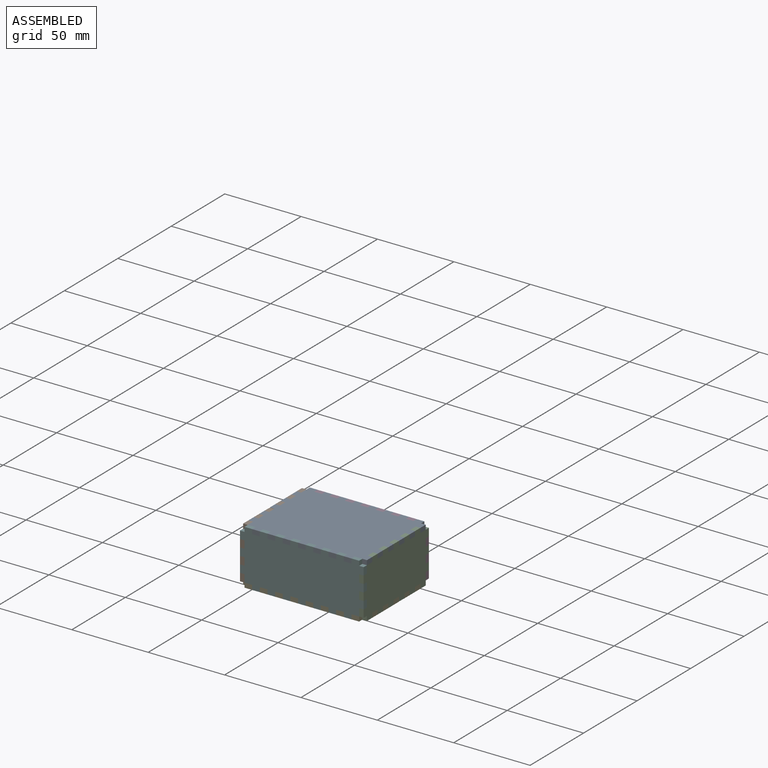
[diagram: assembled view]
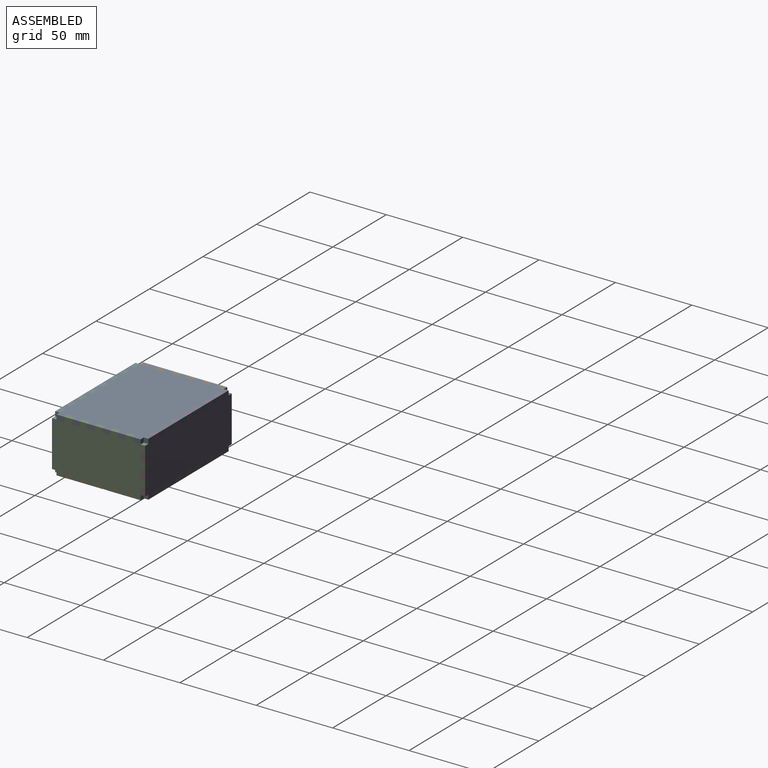
[diagram: assembled view, second angle]
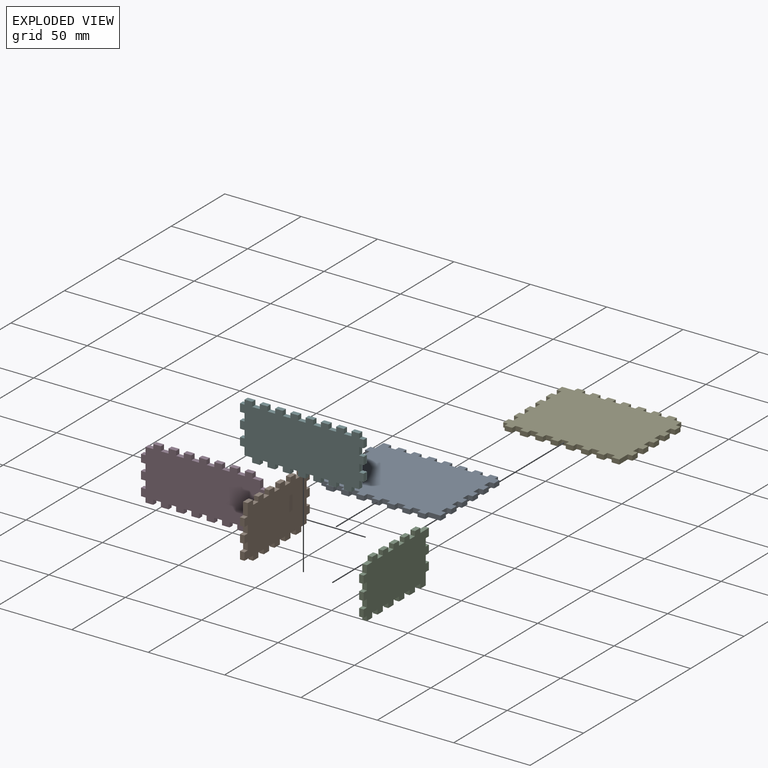
[diagram: exploded view]
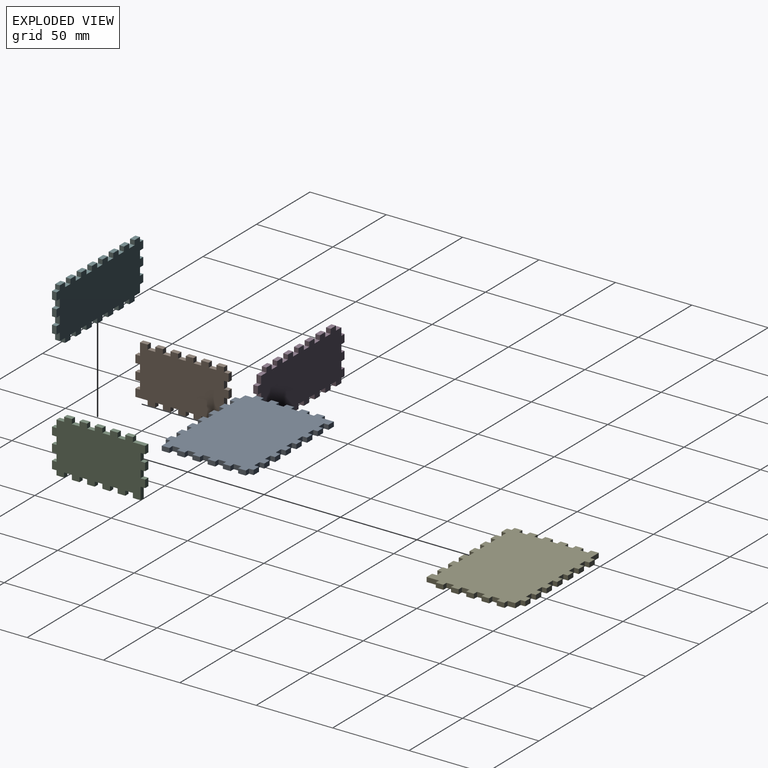
[diagram: exploded view, second angle]
ASSEMBLY  parts=6 mates=5
PART A: 104 faces, bbox 81x61x3 mm
  f0: plane 8x3mm, normal (-1,0,0), area 24mm2, adj f1,f101,f102,f103
  f1: plane 3x3mm, normal (0,1,0), area 9mm2, adj f0,f2,f102,f103
  f2: plane 5x3mm, normal (-1,0,0), area 15mm2, adj f1,f3,f102,f103
  f3: plane 3x3mm, normal (0,-1,0), area 9mm2, adj f2,f4,f102,f103
  f4: plane 5x3mm, normal (-1,0,0), area 15mm2, adj f3,f5,f102,f103
  f5: plane 3x3mm, normal (0,1,0), area 9mm2, adj f4,f6,f102,f103
  f6: plane 5x3mm, normal (-1,0,0), area 15mm2, adj f5,f7,f102,f103
  f7: plane 3x3mm, normal (0,-1,0), area 9mm2, adj f6,f8,f102,f103
  f8: plane 5x3mm, normal (-1,0,0), area 15mm2, adj f7,f9,f102,f103
  f9: plane 3x3mm, normal (0,1,0), area 9mm2, adj f8,f10,f102,f103
  f10: plane 5x3mm, normal (-1,0,0), area 15mm2, adj f9,f11,f102,f103
  f11: plane 3x3mm, normal (0,-1,0), area 9mm2, adj f10,f12,f102,f103
  f12: plane 5x3mm, normal (-1,0,0), area 15mm2, adj f11,f13,f102,f103
  f13: plane 3x3mm, normal (0,1,0), area 9mm2, adj f12,f14,f102,f103
  f14: plane 5x3mm, normal (-1,0,0), area 15mm2, adj f13,f15,f102,f103
  f15: plane 3x3mm, normal (0,-1,0), area 9mm2, adj f14,f16,f102,f103
  f16: plane 5x3mm, normal (-1,0,0), area 15mm2, adj f15,f17,f102,f103
  f17: plane 3x3mm, normal (0,1,0), area 9mm2, adj f16,f18,f102,f103
  f18: plane 5x3mm, normal (-1,0,0), area 15mm2, adj f17,f19,f102,f103
  f19: plane 3x3mm, normal (0,-1,0), area 9mm2, adj f18,f20,f102,f103
  f20: plane 5x3mm, normal (-1,0,0), area 15mm2, adj f19,f21,f102,f103
  f21: plane 5x3mm, normal (0,-1,0), area 15mm2, adj f20,f22,f102,f103
  f22: plane 3x3mm, normal (-1,0,0), area 9mm2, adj f21,f23,f102,f103
  f23: plane 5x3mm, normal (0,-1,0), area 15mm2, adj f22,f24,f102,f103
  f24: plane 3x3mm, normal (1,0,0), area 9mm2, adj f23,f25,f102,f103
  f25: plane 5x3mm, normal (0,-1,0), area 15mm2, adj f24,f26,f102,f103
  f26: plane 3x3mm, normal (-1,0,0), area 9mm2, adj f25,f27,f102,f103
  f27: plane 5x3mm, normal (0,-1,0), area 15mm2, adj f26,f28,f102,f103
  f28: plane 3x3mm, normal (1,0,0), area 9mm2, adj f27,f29,f102,f103
  f29: plane 5x3mm, normal (0,-1,0), area 15mm2, adj f28,f30,f102,f103
  f30: plane 3x3mm, normal (-1,0,0), area 9mm2, adj f29,f31,f102,f103
  f31: plane 5x3mm, normal (0,-1,0), area 15mm2, adj f30,f32,f102,f103
  f32: plane 3x3mm, normal (1,0,0), area 9mm2, adj f31,f33,f102,f103
  f33: plane 5x3mm, normal (0,-1,0), area 15mm2, adj f32,f34,f102,f103
  f34: plane 3x3mm, normal (-1,0,0), area 9mm2, adj f33,f35,f102,f103
  f35: plane 5x3mm, normal (0,-1,0), area 15mm2, adj f34,f36,f102,f103
  f36: plane 3x3mm, normal (1,0,0), area 9mm2, adj f35,f37,f102,f103
  f37: plane 5x3mm, normal (0,-1,0), area 15mm2, adj f36,f38,f102,f103
  f38: plane 3x3mm, normal (-1,0,0), area 9mm2, adj f37,f39,f102,f103
  f39: plane 5x3mm, normal (0,-1,0), area 15mm2, adj f38,f40,f102,f103
  f40: plane 3x3mm, normal (1,0,0), area 9mm2, adj f39,f41,f102,f103
  f41: plane 5x3mm, normal (0,-1,0), area 15mm2, adj f40,f42,f102,f103
  f42: plane 3x3mm, normal (-1,0,0), area 9mm2, adj f41,f43,f102,f103
  f43: plane 5x3mm, normal (0,-1,0), area 15mm2, adj f42,f44,f102,f103
  f44: plane 3x3mm, normal (1,0,0), area 9mm2, adj f43,f45,f102,f103
  f45: plane 5x3mm, normal (0,-1,0), area 15mm2, adj f44,f46,f102,f103
  f46: plane 3x3mm, normal (-1,0,0), area 9mm2, adj f45,f47,f102,f103
  f47: plane 5x3mm, normal (0,-1,0), area 15mm2, adj f46,f48,f102,f103
  f48: plane 3x3mm, normal (1,0,0), area 9mm2, adj f47,f49,f102,f103
  f49: plane 8x3mm, normal (0,-1,0), area 24mm2, adj f48,f50,f102,f103
  f50: plane 5x3mm, normal (1,0,0), area 15mm2, adj f49,f51,f102,f103
  f51: plane 3x3mm, normal (0,1,0), area 9mm2, adj f50,f52,f102,f103
  f52: plane 5x3mm, normal (1,0,0), area 15mm2, adj f51,f53,f102,f103
  f53: plane 3x3mm, normal (0,-1,0), area 9mm2, adj f52,f54,f102,f103
  f54: plane 5x3mm, normal (1,0,0), area 15mm2, adj f53,f55,f102,f103
  f55: plane 3x3mm, normal (0,1,0), area 9mm2, adj f54,f56,f102,f103
  f56: plane 5x3mm, normal (1,0,0), area 15mm2, adj f55,f57,f102,f103
  f57: plane 3x3mm, normal (0,-1,0), area 9mm2, adj f56,f58,f102,f103
  f58: plane 5x3mm, normal (1,0,0), area 15mm2, adj f57,f59,f102,f103
  f59: plane 3x3mm, normal (0,1,0), area 9mm2, adj f58,f60,f102,f103
  f60: plane 5x3mm, normal (1,0,0), area 15mm2, adj f59,f61,f102,f103
  f61: plane 3x3mm, normal (0,-1,0), area 9mm2, adj f60,f62,f102,f103
  f62: plane 5x3mm, normal (1,0,0), area 15mm2, adj f61,f63,f102,f103
  f63: plane 3x3mm, normal (0,1,0), area 9mm2, adj f62,f64,f102,f103
  f64: plane 5x3mm, normal (1,0,0), area 15mm2, adj f63,f65,f102,f103
  f65: plane 3x3mm, normal (0,-1,0), area 9mm2, adj f64,f66,f102,f103
  f66: plane 5x3mm, normal (1,0,0), area 15mm2, adj f65,f67,f102,f103
  f67: plane 3x3mm, normal (0,1,0), area 9mm2, adj f66,f68,f102,f103
  f68: plane 5x3mm, normal (1,0,0), area 15mm2, adj f67,f69,f102,f103
  f69: plane 3x3mm, normal (0,-1,0), area 9mm2, adj f68,f70,f102,f103
  f70: plane 5x3mm, normal (1,0,0), area 15mm2, adj f69,f71,f102,f103
  f71: plane 3x3mm, normal (0,1,0), area 9mm2, adj f70,f72,f102,f103
  f72: plane 3x3mm, normal (1,0,0), area 9mm2, adj f71,f73,f102,f103
  f73: plane 5x3mm, normal (0,1,0), area 15mm2, adj f72,f74,f102,f103
  f74: plane 3x3mm, normal (-1,0,0), area 9mm2, adj f73,f75,f102,f103
  f75: plane 5x3mm, normal (0,1,0), area 15mm2, adj f74,f76,f102,f103
  f76: plane 3x3mm, normal (1,0,0), area 9mm2, adj f75,f77,f102,f103
  f77: plane 5x3mm, normal (0,1,0), area 15mm2, adj f76,f78,f102,f103
  f78: plane 3x3mm, normal (-1,0,0), area 9mm2, adj f77,f79,f102,f103
  f79: plane 5x3mm, normal (0,1,0), area 15mm2, adj f78,f80,f102,f103
  f80: plane 3x3mm, normal (1,0,0), area 9mm2, adj f79,f81,f102,f103
  f81: plane 5x3mm, normal (0,1,0), area 15mm2, adj f80,f82,f102,f103
  f82: plane 3x3mm, normal (-1,0,0), area 9mm2, adj f81,f83,f102,f103
  f83: plane 5x3mm, normal (0,1,0), area 15mm2, adj f82,f84,f102,f103
  f84: plane 3x3mm, normal (1,0,0), area 9mm2, adj f83,f85,f102,f103
  f85: plane 5x3mm, normal (0,1,0), area 15mm2, adj f84,f86,f102,f103
  f86: plane 3x3mm, normal (-1,0,0), area 9mm2, adj f85,f87,f102,f103
  f87: plane 5x3mm, normal (0,1,0), area 15mm2, adj f86,f88,f102,f103
  f88: plane 3x3mm, normal (1,0,0), area 9mm2, adj f87,f89,f102,f103
  f89: plane 5x3mm, normal (0,1,0), area 15mm2, adj f88,f90,f102,f103
  f90: plane 3x3mm, normal (-1,0,0), area 9mm2, adj f89,f91,f102,f103
  f91: plane 5x3mm, normal (0,1,0), area 15mm2, adj f90,f92,f102,f103
  f92: plane 3x3mm, normal (1,0,0), area 9mm2, adj f91,f93,f102,f103
  f93: plane 5x3mm, normal (0,1,0), area 15mm2, adj f92,f94,f102,f103
  f94: plane 3x3mm, normal (-1,0,0), area 9mm2, adj f93,f95,f102,f103
  f95: plane 5x3mm, normal (0,1,0), area 15mm2, adj f94,f96,f102,f103
  f96: plane 3x3mm, normal (1,0,0), area 9mm2, adj f95,f97,f102,f103
  f97: plane 5x3mm, normal (0,1,0), area 15mm2, adj f96,f98,f102,f103
  f98: plane 3x3mm, normal (-1,0,0), area 9mm2, adj f97,f99,f102,f103
  f99: plane 5x3mm, normal (0,1,0), area 15mm2, adj f98,f100,f102,f103
  f100: plane 3x3mm, normal (1,0,0), area 9mm2, adj f99,f101,f102,f103
  f101: plane 5x3mm, normal (0,1,0), area 15mm2, adj f0,f100,f102,f103
  f102: plane 81x61mm, normal (0,0,1), area 4515mm2, adj f0,f1,f2,f3,f4,f5,f6,f7
  f103: plane 81x61mm, normal (0,0,-1), area 4515mm2, adj f0,f1,f2,f3,f4,f5,f6,f7
PART B: 68 faces, bbox 3x61x36 mm
  f0: plane 5x3mm, normal (0,0,1), area 15mm2, adj f1,f65,f66,f67
  f1: plane 3x3mm, normal (0,-1,0), area 9mm2, adj f0,f2,f66,f67
  f2: plane 5x3mm, normal (0,0,1), area 15mm2, adj f1,f3,f66,f67
  f3: plane 5x3mm, normal (0,-1,0), area 15mm2, adj f2,f4,f66,f67
  f4: plane 3x3mm, normal (0,0,1), area 9mm2, adj f3,f5,f66,f67
  f5: plane 5x3mm, normal (0,-1,0), area 15mm2, adj f4,f6,f66,f67
  f6: plane 3x3mm, normal (0,0,-1), area 9mm2, adj f5,f7,f66,f67
  f7: plane 5x3mm, normal (0,-1,0), area 15mm2, adj f6,f8,f66,f67
  f8: plane 3x3mm, normal (0,0,1), area 9mm2, adj f7,f9,f66,f67
  f9: plane 5x3mm, normal (0,-1,0), area 15mm2, adj f8,f10,f66,f67
  f10: plane 3x3mm, normal (0,0,-1), area 9mm2, adj f9,f11,f66,f67
  f11: plane 5x3mm, normal (0,-1,0), area 15mm2, adj f10,f12,f66,f67
  f12: plane 3x3mm, normal (0,0,1), area 9mm2, adj f11,f13,f66,f67
  f13: plane 5x3mm, normal (0,-1,0), area 15mm2, adj f12,f14,f66,f67
  f14: plane 3x3mm, normal (0,0,-1), area 9mm2, adj f13,f15,f66,f67
  f15: plane 3x3mm, normal (0,-1,0), area 9mm2, adj f14,f16,f66,f67
  f16: plane 5x3mm, normal (0,0,-1), area 15mm2, adj f15,f17,f66,f67
  f17: plane 3x3mm, normal (0,1,0), area 9mm2, adj f16,f18,f66,f67
  f18: plane 5x3mm, normal (0,0,-1), area 15mm2, adj f17,f19,f66,f67
  f19: plane 3x3mm, normal (0,-1,0), area 9mm2, adj f18,f20,f66,f67
  f20: plane 5x3mm, normal (0,0,-1), area 15mm2, adj f19,f21,f66,f67
  f21: plane 3x3mm, normal (0,1,0), area 9mm2, adj f20,f22,f66,f67
  f22: plane 5x3mm, normal (0,0,-1), area 15mm2, adj f21,f23,f66,f67
  f23: plane 3x3mm, normal (0,-1,0), area 9mm2, adj f22,f24,f66,f67
  f24: plane 5x3mm, normal (0,0,-1), area 15mm2, adj f23,f25,f66,f67
  f25: plane 3x3mm, normal (0,1,0), area 9mm2, adj f24,f26,f66,f67
  f26: plane 5x3mm, normal (0,0,-1), area 15mm2, adj f25,f27,f66,f67
  f27: plane 3x2.9mm, normal (0,-1,0), area 8.7mm2, adj f26,f28,f66,f67
  f28: plane 5x3mm, normal (0,-0.02,-1), area 15mm2, adj f27,f29,f66,f67
  f29: plane 3x3mm, normal (0,1,0), area 9mm2, adj f28,f30,f66,f67
  f30: plane 5x3mm, normal (0,0,-1), area 15mm2, adj f29,f31,f66,f67
  f31: plane 3x3mm, normal (0,-1,0), area 9mm2, adj f30,f32,f66,f67
  f32: plane 5x3mm, normal (0,0,-1), area 15mm2, adj f31,f33,f66,f67
  f33: plane 3x3mm, normal (0,1,0), area 9mm2, adj f32,f34,f66,f67
  f34: plane 5x3mm, normal (0,0,-1), area 15mm2, adj f33,f35,f66,f67
  f35: plane 3x3mm, normal (0,-1,0), area 9mm2, adj f34,f36,f66,f67
  f36: plane 5x3mm, normal (0,0,-1), area 15mm2, adj f35,f37,f66,f67
  f37: plane 8x3mm, normal (0,1,0), area 24mm2, adj f36,f38,f66,f67
  f38: plane 3x3mm, normal (0,0,-1), area 9mm2, adj f37,f39,f66,f67
  f39: plane 5x3mm, normal (0,1,0), area 15mm2, adj f38,f40,f66,f67
  f40: plane 3x3mm, normal (0,0,1), area 9mm2, adj f39,f41,f66,f67
  f41: plane 5x3mm, normal (0,1,0), area 15mm2, adj f40,f42,f66,f67
  f42: plane 3x3mm, normal (0,0,-1), area 9mm2, adj f41,f43,f66,f67
  f43: plane 5x3mm, normal (0,1,0), area 15mm2, adj f42,f44,f66,f67
  f44: plane 3x3mm, normal (0,0,1), area 9mm2, adj f43,f45,f66,f67
  f45: plane 5x3mm, normal (0,1,0), area 15mm2, adj f44,f46,f66,f67
  f46: plane 3x3mm, normal (0,0,-1), area 9mm2, adj f45,f47,f66,f67
  f47: plane 5x3mm, normal (0,1,0), area 15mm2, adj f46,f48,f66,f67
  f48: plane 8x3mm, normal (0,0,1), area 24mm2, adj f47,f49,f66,f67
  f49: plane 3x3mm, normal (0,1,0), area 9mm2, adj f48,f50,f66,f67
  f50: plane 5x3mm, normal (0,0,1), area 15mm2, adj f49,f51,f66,f67
  f51: plane 3x3mm, normal (0,-1,0), area 9mm2, adj f50,f52,f66,f67
  f52: plane 5x3mm, normal (0,0,1), area 15mm2, adj f51,f53,f66,f67
  f53: plane 3x3mm, normal (0,1,0), area 9mm2, adj f52,f54,f66,f67
  f54: plane 5x3mm, normal (0,0,1), area 15mm2, adj f53,f55,f66,f67
  f55: plane 3x3mm, normal (0,-1,0), area 9mm2, adj f54,f56,f66,f67
  f56: plane 5x3mm, normal (0,0.02,1), area 15mm2, adj f55,f57,f66,f67
  f57: plane 3x2.9mm, normal (0,1,0), area 8.7mm2, adj f56,f58,f66,f67
  f58: plane 5x3mm, normal (0,0,1), area 15mm2, adj f57,f59,f66,f67
  f59: plane 3x3mm, normal (0,-1,0), area 9mm2, adj f58,f60,f66,f67
  f60: plane 5x3mm, normal (0,0,1), area 15mm2, adj f59,f61,f66,f67
  f61: plane 3x3mm, normal (0,1,0), area 9mm2, adj f60,f62,f66,f67
  f62: plane 5x3mm, normal (0,0,1), area 15mm2, adj f61,f63,f66,f67
  f63: plane 3x3mm, normal (0,-1,0), area 9mm2, adj f62,f64,f66,f67
  f64: plane 5x3mm, normal (0,0,1), area 15mm2, adj f63,f65,f66,f67
  f65: plane 3x3mm, normal (0,1,0), area 9mm2, adj f0,f64,f66,f67
  f66: plane 61x36mm, normal (-1,0,0), area 1905mm2, adj f0,f1,f2,f3,f4,f5,f6,f7
  f67: plane 61x36mm, normal (1,0,0), area 1905mm2, adj f0,f1,f2,f3,f4,f5,f6,f7
PART C: same geometry as B
PART D: 86 faces, bbox 81x3x36 mm
  f0: plane 5x3mm, normal (-1,0,0), area 15mm2, adj f1,f83,f84,f85
  f1: plane 5x3mm, normal (0,0,1), area 15mm2, adj f0,f2,f84,f85
  f2: plane 3x3mm, normal (-1,0,0), area 9mm2, adj f1,f3,f84,f85
  f3: plane 5x3mm, normal (0,0,1), area 15mm2, adj f2,f4,f84,f85
  f4: plane 3x3mm, normal (1,0,0), area 9mm2, adj f3,f5,f84,f85
  f5: plane 5x3mm, normal (0,0,1), area 15mm2, adj f4,f6,f84,f85
  f6: plane 3x3mm, normal (-1,0,0), area 9mm2, adj f5,f7,f84,f85
  f7: plane 5x3mm, normal (0,0,1), area 15mm2, adj f6,f8,f84,f85
  f8: plane 3x3mm, normal (1,0,0), area 9mm2, adj f7,f9,f84,f85
  f9: plane 5x3mm, normal (0,0,1), area 15mm2, adj f8,f10,f84,f85
  f10: plane 3x3mm, normal (-1,0,0), area 9mm2, adj f9,f11,f84,f85
  f11: plane 5x3mm, normal (0,0,1), area 15mm2, adj f10,f12,f84,f85
  f12: plane 3x3mm, normal (1,0,0), area 9mm2, adj f11,f13,f84,f85
  f13: plane 5x3mm, normal (0,0,1), area 15mm2, adj f12,f14,f84,f85
  f14: plane 3x3mm, normal (-1,0,0), area 9mm2, adj f13,f15,f84,f85
  f15: plane 5x3mm, normal (0,0,1), area 15mm2, adj f14,f16,f84,f85
  f16: plane 3x3mm, normal (1,0,0), area 9mm2, adj f15,f17,f84,f85
  f17: plane 5x3mm, normal (0,0,1), area 15mm2, adj f16,f18,f84,f85
  f18: plane 3x3mm, normal (-1,0,0), area 9mm2, adj f17,f19,f84,f85
  f19: plane 5x3mm, normal (0,0,1), area 15mm2, adj f18,f20,f84,f85
  f20: plane 3x3mm, normal (1,0,0), area 9mm2, adj f19,f21,f84,f85
  f21: plane 5x3mm, normal (0,0,1), area 15mm2, adj f20,f22,f84,f85
  f22: plane 3x3mm, normal (-1,0,0), area 9mm2, adj f21,f23,f84,f85
  f23: plane 5x3mm, normal (0,0,1), area 15mm2, adj f22,f24,f84,f85
  f24: plane 3x3mm, normal (1,0,0), area 9mm2, adj f23,f25,f84,f85
  f25: plane 5x3mm, normal (0,0,1), area 15mm2, adj f24,f26,f84,f85
  f26: plane 3x3mm, normal (-1,0,0), area 9mm2, adj f25,f27,f84,f85
  f27: plane 5x3mm, normal (0,0,1), area 15mm2, adj f26,f28,f84,f85
  f28: plane 3x3mm, normal (1,0,0), area 9mm2, adj f27,f29,f84,f85
  f29: plane 5x3mm, normal (0,0,1), area 15mm2, adj f28,f30,f84,f85
  f30: plane 5x3mm, normal (1,0,0), area 15mm2, adj f29,f31,f84,f85
  f31: plane 3x3mm, normal (0,0,1), area 9mm2, adj f30,f32,f84,f85
  f32: plane 5x3mm, normal (1,0,0), area 15mm2, adj f31,f33,f84,f85
  f33: plane 3x3mm, normal (0,0,-1), area 9mm2, adj f32,f34,f84,f85
  f34: plane 5x3mm, normal (1,0,0), area 15mm2, adj f33,f35,f84,f85
  f35: plane 3x3mm, normal (0,0,1), area 9mm2, adj f34,f36,f84,f85
  f36: plane 5x3mm, normal (1,0,0), area 15mm2, adj f35,f37,f84,f85
  f37: plane 3x3mm, normal (0,0,-1), area 9mm2, adj f36,f38,f84,f85
  f38: plane 5x3mm, normal (1,0,0), area 15mm2, adj f37,f39,f84,f85
  f39: plane 3x3mm, normal (0,0,1), area 9mm2, adj f38,f40,f84,f85
  f40: plane 5x3mm, normal (1,0,0), area 15mm2, adj f39,f41,f84,f85
  f41: plane 3x3mm, normal (0,0,-1), area 9mm2, adj f40,f42,f84,f85
  f42: plane 3x3mm, normal (1,0,0), area 9mm2, adj f41,f43,f84,f85
  f43: plane 5x3mm, normal (0,0,-1), area 15mm2, adj f42,f44,f84,f85
  f44: plane 3x3mm, normal (-1,0,0), area 9mm2, adj f43,f45,f84,f85
  f45: plane 5x3mm, normal (0,0,-1), area 15mm2, adj f44,f46,f84,f85
  f46: plane 3x3mm, normal (1,0,0), area 9mm2, adj f45,f47,f84,f85
  f47: plane 5x3mm, normal (0,0,-1), area 15mm2, adj f46,f48,f84,f85
  f48: plane 3x3mm, normal (-1,0,0), area 9mm2, adj f47,f49,f84,f85
  f49: plane 5x3mm, normal (0,0,-1), area 15mm2, adj f48,f50,f84,f85
  f50: plane 3x3mm, normal (1,0,0), area 9mm2, adj f49,f51,f84,f85
  f51: plane 5x3mm, normal (0,0,-1), area 15mm2, adj f50,f52,f84,f85
  f52: plane 3x3mm, normal (-1,0,0), area 9mm2, adj f51,f53,f84,f85
  f53: plane 5x3mm, normal (0,0,-1), area 15mm2, adj f52,f54,f84,f85
  f54: plane 3x3mm, normal (1,0,0), area 9mm2, adj f53,f55,f84,f85
  f55: plane 5x3mm, normal (0,0,-1), area 15mm2, adj f54,f56,f84,f85
  f56: plane 3x3mm, normal (-1,0,0), area 9mm2, adj f55,f57,f84,f85
  f57: plane 5x3mm, normal (0,0,-1), area 15mm2, adj f56,f58,f84,f85
  f58: plane 3x3mm, normal (1,0,0), area 9mm2, adj f57,f59,f84,f85
  f59: plane 5x3mm, normal (0,0,-1), area 15mm2, adj f58,f60,f84,f85
  f60: plane 3x3mm, normal (-1,0,0), area 9mm2, adj f59,f61,f84,f85
  f61: plane 5x3mm, normal (0,0,-1), area 15mm2, adj f60,f62,f84,f85
  f62: plane 3x3mm, normal (1,0,0), area 9mm2, adj f61,f63,f84,f85
  f63: plane 5x3mm, normal (0,0,-1), area 15mm2, adj f62,f64,f84,f85
  f64: plane 3x3mm, normal (-1,0,0), area 9mm2, adj f63,f65,f84,f85
  f65: plane 5x3mm, normal (0,0,-1), area 15mm2, adj f64,f66,f84,f85
  f66: plane 3x3mm, normal (1,0,0), area 9mm2, adj f65,f67,f84,f85
  f67: plane 5x3mm, normal (0,0,-1), area 15mm2, adj f66,f68,f84,f85
  f68: plane 3x3mm, normal (-1,0,0), area 9mm2, adj f67,f69,f84,f85
  f69: plane 5x3mm, normal (0,0,-1), area 15mm2, adj f68,f70,f84,f85
  f70: plane 3x3mm, normal (1,0,0), area 9mm2, adj f69,f71,f84,f85
  f71: plane 5x3mm, normal (0,0,-1), area 15mm2, adj f70,f72,f84,f85
  f72: plane 3x3mm, normal (-1,0,0), area 9mm2, adj f71,f73,f84,f85
  f73: plane 3x3mm, normal (0,0,-1), area 9mm2, adj f72,f74,f84,f85
  f74: plane 5x3mm, normal (-1,0,0), area 15mm2, adj f73,f75,f84,f85
  f75: plane 3x3mm, normal (0,0,1), area 9mm2, adj f74,f76,f84,f85
  f76: plane 5x3mm, normal (-1,0,0), area 15mm2, adj f75,f77,f84,f85
  f77: plane 3x3mm, normal (0,0,-1), area 9mm2, adj f76,f78,f84,f85
  f78: plane 5x3mm, normal (-1,0,0), area 15mm2, adj f77,f79,f84,f85
  f79: plane 3x3mm, normal (0,0,1), area 9mm2, adj f78,f80,f84,f85
  f80: plane 5x3mm, normal (-1,0,0), area 15mm2, adj f79,f81,f84,f85
  f81: plane 3x3mm, normal (0,0,-1), area 9mm2, adj f80,f82,f84,f85
  f82: plane 5x3mm, normal (-1,0,0), area 15mm2, adj f81,f83,f84,f85
  f83: plane 3x3mm, normal (0,0,1), area 9mm2, adj f0,f82,f84,f85
  f84: plane 81x36mm, normal (0,-1,0), area 2565mm2, adj f0,f1,f2,f3,f4,f5,f6,f7
  f85: plane 81x36mm, normal (0,1,0), area 2565mm2, adj f0,f1,f2,f3,f4,f5,f6,f7
PART E: same geometry as A
PART F: same geometry as D
PLACE A t=(34.79,-25.55,51.48)mm
PLACE B rot(axis=(1,0,0),180deg) t=(-43.21,-25.55,21.48)mm
PLACE C rot(axis=(-0.78,0,-0.62),0deg) t=(34.79,-25.55,51.48)mm
PLACE D rot(axis=(0,0,-1),0deg) t=(34.79,-25.55,51.48)mm
PLACE E rot(axis=(0,0,1),180deg) t=(34.79,-25.55,18.48)mm
PLACE F rot(axis=(0,-1,0),180deg) t=(34.79,-83.55,21.48)mm
MATE fastened A.f53 <-> C.f65  axis (0,-1,0) through (73.79,-43.05,52.98)mm
MATE fastened A.f74 <-> D.f28  axis (-1,0,0) through (67.29,3.45,52.98)mm
MATE fastened B.f4 <-> D.f75  axis (0,0,-1) through (-4.21,3.45,26.48)mm
MATE fastened C.f35 <-> E.f19  axis (0,-1,0) through (73.79,-3.05,19.98)mm
MATE fastened C.f12 <-> F.f83  axis (0,0,1) through (73.79,-54.55,26.48)mm
